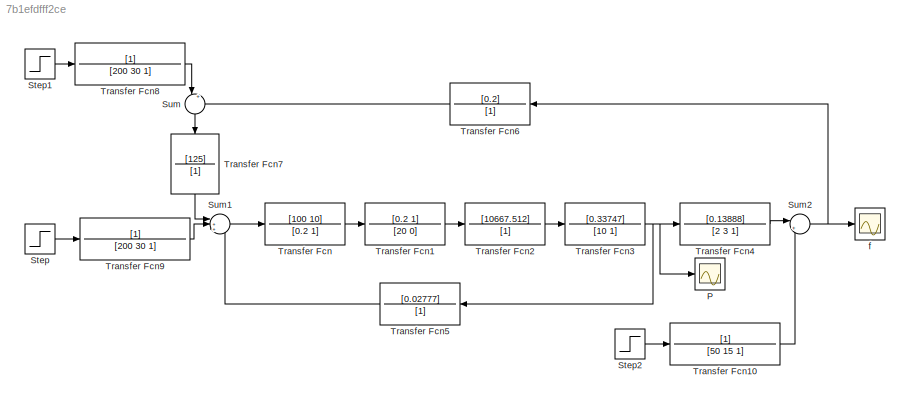
MODEL slx_7b1efdfff2ce
KIND model
CONFIG AbsTol = auto
CONFIG EnableMultiTasking = off
CONFIG FixedStep = auto
CONFIG MaxStep = auto
CONFIG MinStep = auto
CONFIG RelTol = 1e-3
CONFIG SampleTimeConstraint = Unconstrained
CONFIG SolverName = VariableStepAuto
CONFIG StartTime = 0.0
CONFIG StopTime = 250.0
BLOCK [Scope] P
  Floating = off
  NumInputPorts = 1
  ScopeSpecificationString = Simulink.scopes.TimeScopeBlockCfg('CurrentConfiguration', extmgr.ConfigurationSet(extmgr.Configuration('Core','General UI',true),extmgr.Configuration('Core','Source UI',true),extmgr.Configuration('Sources','WiredSimulink',true,'DataLoggingVariableName','ScopeData1'),extmgr.Configuration('Visuals','Time Domain',true,'SerializedDisplays',{struct('MinYLimReal','-51347.72769','MaxYLimReal','52074.6134...<+1402ch>
BLOCK [Step] Step
  After = 10
  SampleTime = 0
  Time = 0
BLOCK [Step] Step1
  After = 10
  SampleTime = 0
  Time = 0
BLOCK [Step] Step2
  After = -5
  SampleTime = 0
  Time = 150
BLOCK [Sum] Sum
  Inputs = |+-
  NameLocation = left
BLOCK [Sum] Sum1
  Inputs = |++-
BLOCK [Sum] Sum2
  Inputs = |++
BLOCK [TransferFcn] Transfer Fcn
  Denominator = [0.2 1]
  Numerator = [100 10]
BLOCK [TransferFcn] Transfer Fcn1
  Denominator = [20 0]
  Numerator = [0.2 1]
BLOCK [TransferFcn] Transfer Fcn10
  Denominator = [50 15 1]
BLOCK [TransferFcn] Transfer Fcn2
  Denominator = [1]
  Numerator = [10667.512]
BLOCK [TransferFcn] Transfer Fcn3
  Denominator = [10 1]
  Numerator = [0.33747]
BLOCK [TransferFcn] Transfer Fcn4
  Denominator = [2 3 1]
  Numerator = [0.13888]
BLOCK [TransferFcn] Transfer Fcn5
  Denominator = [1]
  NameLocation = top
  Numerator = [0.02777]
BLOCK [TransferFcn] Transfer Fcn6
  Denominator = [1]
  NameLocation = top
  Numerator = [0.2]
BLOCK [TransferFcn] Transfer Fcn7
  Denominator = [1]
  NameLocation = left
  Numerator = [125]
BLOCK [TransferFcn] Transfer Fcn8
  Denominator = [200 30 1]
BLOCK [TransferFcn] Transfer Fcn9
  Denominator = [200 30 1]
BLOCK [Scope] f
  Floating = off
  NumInputPorts = 1
  ScopeSpecificationString = Simulink.scopes.TimeScopeBlockCfg('CurrentConfiguration', extmgr.ConfigurationSet(extmgr.Configuration('Core','General UI',true),extmgr.Configuration('Core','Source UI',true),extmgr.Configuration('Sources','WiredSimulink',true),extmgr.Configuration('Visuals','Time Domain',true,'SerializedDisplays',{struct('MinYLimReal','-12.09303','MaxYLimReal','108.83724','YLabelReal','','MinYLimMag','0.00000','M...<+1334ch>
LINE Step1:1 -> Transfer Fcn8:1
LINE Step2:1 -> Transfer Fcn10:1
LINE Step:1 -> Transfer Fcn9:1
LINE Sum1:1 -> Transfer Fcn:1
NET Sum2:1 -> Transfer Fcn6:1, f:1
LINE Sum:1 -> Transfer Fcn7:1
LINE Transfer Fcn10:1 -> Sum2:2
LINE Transfer Fcn1:1 -> Transfer Fcn2:1
LINE Transfer Fcn2:1 -> Transfer Fcn3:1
NET Transfer Fcn3:1 -> P:1, Transfer Fcn4:1, Transfer Fcn5:1
LINE Transfer Fcn4:1 -> Sum2:1
LINE Transfer Fcn5:1 -> Sum1:3
LINE Transfer Fcn6:1 -> Sum:2
LINE Transfer Fcn7:1 -> Sum1:1
LINE Transfer Fcn8:1 -> Sum:1
LINE Transfer Fcn9:1 -> Sum1:2
LINE Transfer Fcn:1 -> Transfer Fcn1:1
note: NET lines group one-source signal fan-out (src -> all destinations, sorted); 1:1 wires keep LINE
